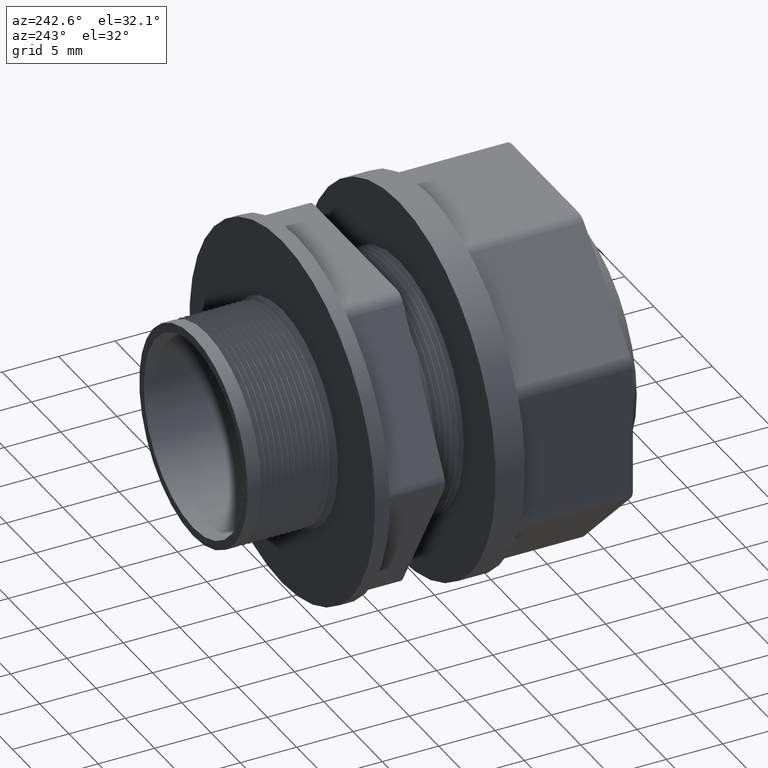
[diagram: clean part render]
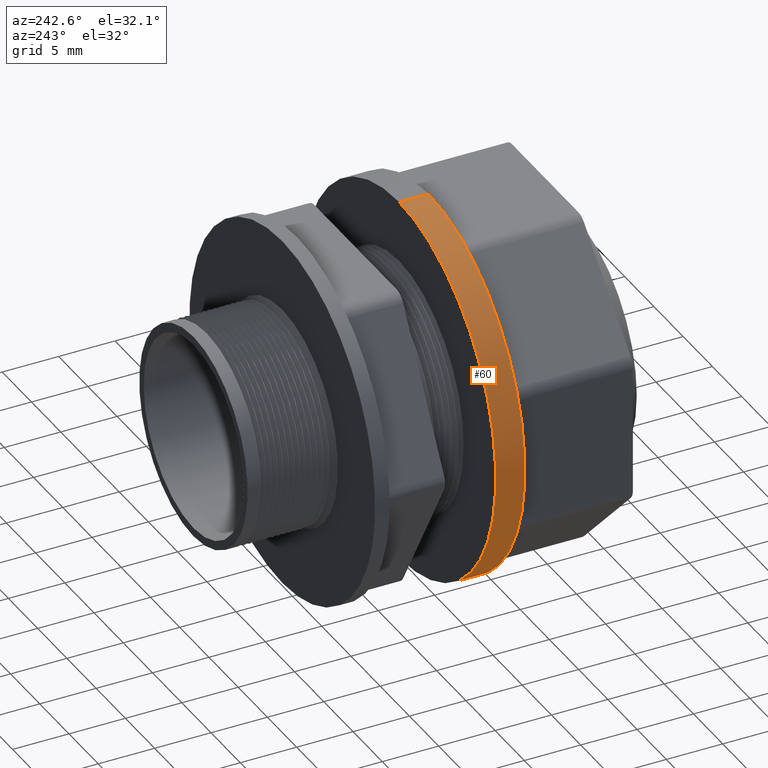
[diagram: same view with one face highlighted and labeled with its STEP entity id]
A machine part, auxiliary view. The second image highlights one B-rep face of the part: STEP entity #60.
In plain terms, the highlighted cylindrical surface (partial cylindrical patch) has radius 16.51 mm, axis along (-0, 1, -0).
Its self-contained STEP definition (entity closure, byte-faithful):
#37 = VERTEX_POINT ( 'NONE', #1330 ) ;
#57 = VERTEX_POINT ( 'NONE', #1337 ) ;
#59 = EDGE_CURVE ( 'NONE', #71, #57, #1444, .T. ) ;
#60 = ADVANCED_FACE ( 'NONE', ( #1324 ), #1441, .T. ) ;
#61 = EDGE_LOOP ( 'NONE', ( #62, #63, #65, #144 ) ) ;
#62 = ORIENTED_EDGE ( 'NONE', *, *, #74, .F. ) ;
#63 = ORIENTED_EDGE ( 'NONE', *, *, #64, .T. ) ;
#64 = EDGE_CURVE ( 'NONE', #72, #71, #1404, .T. ) ;
#65 = ORIENTED_EDGE ( 'NONE', *, *, #59, .T. ) ;
#71 = VERTEX_POINT ( 'NONE', #1385 ) ;
#72 = VERTEX_POINT ( 'NONE', #1384 ) ;
#74 = EDGE_CURVE ( 'NONE', #72, #37, #1454, .T. ) ;
#144 = ORIENTED_EDGE ( 'NONE', *, *, #145, .F. ) ;
#145 = EDGE_CURVE ( 'NONE', #37, #57, #1530, .T. ) ;
#1321 = AXIS2_PLACEMENT_3D ( 'NONE', #1323, #1322, #1405 ) ;
#1322 = DIRECTION ( 'NONE',  ( -0.0000000000000000000, 1.000000000000000000, -0.0000000000000000000 ) ) ;
#1323 = CARTESIAN_POINT ( 'NONE',  ( 0.0000000000000000000, 2.259507931487918500, 0.0000000000000000000 ) ) ;
#1324 = FACE_OUTER_BOUND ( 'NONE', #61, .T. ) ;
#1325 = DIRECTION ( 'NONE',  ( -0.0000000000000000000, 1.000000000000000000, -0.0000000000000000000 ) ) ;
#1330 = CARTESIAN_POINT ( 'NONE',  ( 7.960204194457793000E-017, 0.6119999999999998800, -0.6499999999999998000 ) ) ;
#1337 = CARTESIAN_POINT ( 'NONE',  ( 0.0000000000000000000, 0.6119999999999998800, 0.6499999999999998000 ) ) ;
#1347 = DIRECTION ( 'NONE',  ( 0.0000000000000000000, 0.0000000000000000000, -1.000000000000000000 ) ) ;
#1348 = DIRECTION ( 'NONE',  ( -0.0000000000000000000, 1.000000000000000000, -0.0000000000000000000 ) ) ;
#1349 = CARTESIAN_POINT ( 'NONE',  ( 0.0000000000000000000, 0.5100000000000000100, 0.0000000000000000000 ) ) ;
#1350 = AXIS2_PLACEMENT_3D ( 'NONE', #1349, #1348, #1347 ) ;
#1384 = CARTESIAN_POINT ( 'NONE',  ( 7.960204194457793000E-017, 0.5100000000000000100, -0.6499999999999998000 ) ) ;
#1385 = CARTESIAN_POINT ( 'NONE',  ( 0.0000000000000000000, 0.5100000000000000100, 0.6499999999999998000 ) ) ;
#1404 = CIRCLE ( 'NONE', #1350, 0.6499999999999998000 ) ;
#1405 = DIRECTION ( 'NONE',  ( 0.0000000000000000000, 0.0000000000000000000, 1.000000000000000000 ) ) ;
#1441 = CYLINDRICAL_SURFACE ( 'NONE', #1321, 0.6499999999999998000 ) ;
#1442 = VECTOR ( 'NONE', #1325, 39.37007874015748100 ) ;
#1443 = CARTESIAN_POINT ( 'NONE',  ( 0.0000000000000000000, 2.259507931487918500, 0.6499999999999998000 ) ) ;
#1444 = LINE ( 'NONE', #1443, #1442 ) ;
#1451 = DIRECTION ( 'NONE',  ( -0.0000000000000000000, 1.000000000000000000, -0.0000000000000000000 ) ) ;
#1452 = VECTOR ( 'NONE', #1451, 39.37007874015748100 ) ;
#1453 = CARTESIAN_POINT ( 'NONE',  ( 7.960204194457793000E-017, 2.259507931487918500, -0.6499999999999998000 ) ) ;
#1454 = LINE ( 'NONE', #1453, #1452 ) ;
#1528 = CARTESIAN_POINT ( 'NONE',  ( 0.0000000000000000000, 0.6119999999999998800, 0.0000000000000000000 ) ) ;
#1529 = AXIS2_PLACEMENT_3D ( 'NONE', #1528, #1626, #1625 ) ;
#1530 = CIRCLE ( 'NONE', #1529, 0.6499999999999998000 ) ;
#1625 = DIRECTION ( 'NONE',  ( 0.0000000000000000000, 0.0000000000000000000, 1.000000000000000000 ) ) ;
#1626 = DIRECTION ( 'NONE',  ( -0.0000000000000000000, 1.000000000000000000, -0.0000000000000000000 ) ) ;